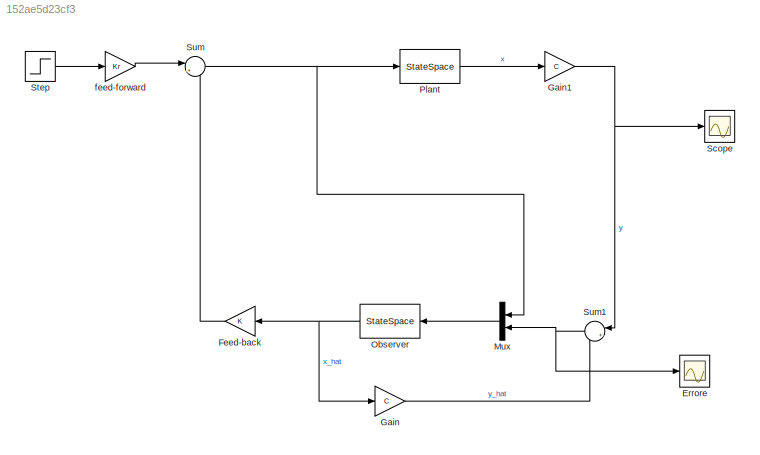
MODEL slx_152ae5d23cf3
KIND model
CONFIG AbsTol = auto
CONFIG EnableMultiTasking = off
CONFIG FixedStep = auto
CONFIG MaxStep = auto
CONFIG MinStep = auto
CONFIG RelTol = 1e-3
CONFIG SampleTimeConstraint = Unconstrained
CONFIG SolverName = VariableStepAuto
CONFIG StartTime = 0.0
CONFIG StopTime = 10.0
BLOCK [Scope] Errore
  Floating = off
  NumInputPorts = 1
  ScopeSpecificationString = Simulink.scopes.TimeScopeBlockCfg('CurrentConfiguration', extmgr.ConfigurationSet(extmgr.Configuration('Core','General UI',true),extmgr.Configuration('Core','Source UI',true),extmgr.Configuration('Sources','WiredSimulink',true,'DataLoggingVariableName','ScopeData1'),extmgr.Configuration('Visuals','Time Domain',true,'SerializedDisplays',{struct('MinYLimReal','-0.09696','MaxYLimReal','0.56633','YLab...<+1389ch>
BLOCK [Gain] Feed-back
  Gain = K
  Multiplication = Matrix(K*u)
  NameLocation = top
BLOCK [Gain] Gain
  Gain = C
  Multiplication = Matrix(K*u)
BLOCK [Gain] Gain1
  Gain = C
  Multiplication = Matrix(K*u)
BLOCK [Mux] Mux
  DisplayOption = bar
  Inputs = 2
  NameLocation = top
BLOCK [StateSpace] Observer
  A = A
  B = [B L]
  C = Cu
  D = [0 0; 0 0]
  InitialCondition = 0
  NameLocation = top
BLOCK [StateSpace] Plant
  A = A
  B = B
  C = Cu
  D = [0 ; 0]
  InitialCondition = [1 0.5]
  ParameterTunability = Unconstrained
BLOCK [Scope] Scope
  Floating = off
  NumInputPorts = 1
  ScopeSpecificationString = Simulink.scopes.TimeScopeBlockCfg('CurrentConfiguration', extmgr.ConfigurationSet(extmgr.Configuration('Core','General UI',true),extmgr.Configuration('Core','Source UI',true),extmgr.Configuration('Sources','WiredSimulink',true),extmgr.Configuration('Visuals','Time Domain',true,'SerializedDisplays',{struct('MinYLimReal','0.4375','MaxYLimReal','1.06253','YLabelReal','','MinYLimMag','0.4375','MaxYLim...<+1341ch>
BLOCK [Step] Step
  SampleTime = 0
  Time = 0
BLOCK [Sum] Sum
  Inputs = |+-
BLOCK [Sum] Sum1
  Inputs = |+-
  NameLocation = top
BLOCK [Gain] feed-forward
  Gain = Kr
  Multiplication = Matrix(K*u)
LINE Feed-back:1 -> Sum:2
NET Gain1:1 -> Scope:1, Sum1:1
LINE Gain:1 -> Sum1:2
LINE Mux:1 -> Observer:1
NET Observer:1 -> Feed-back:1, Gain:1
LINE Plant:1 -> Gain1:1
LINE Step:1 -> feed-forward:1
NET Sum1:1 -> Errore:1, Mux:2
NET Sum:1 -> Mux:1, Plant:1
LINE feed-forward:1 -> Sum:1
note: NET lines group one-source signal fan-out (src -> all destinations, sorted); 1:1 wires keep LINE
